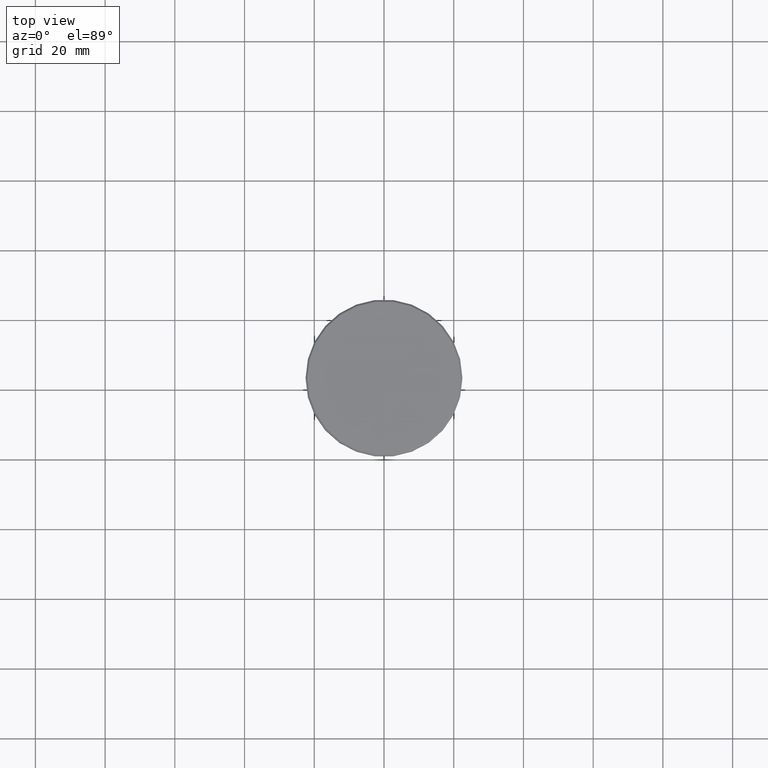
[diagram: clean part render]
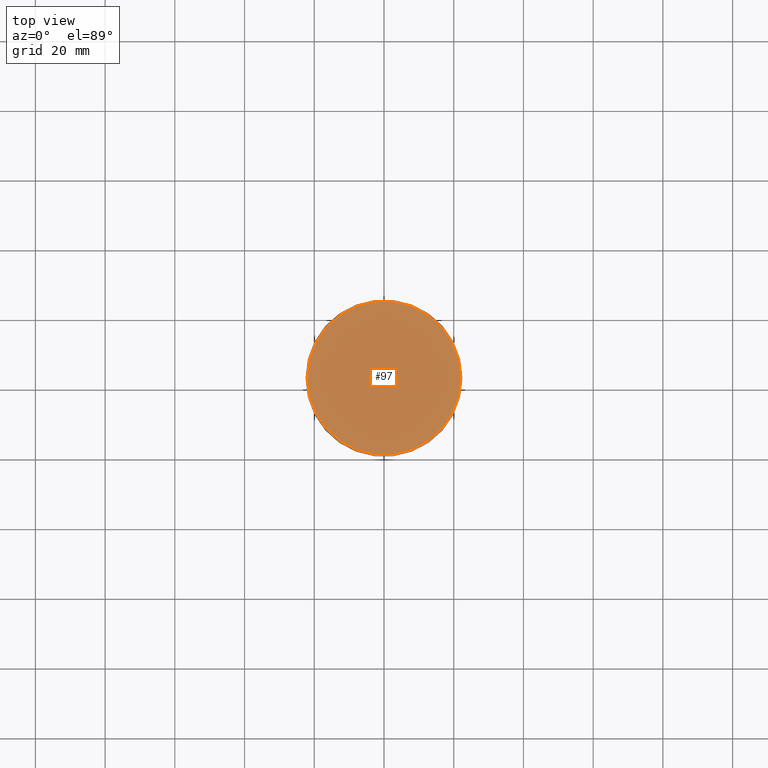
[diagram: same view with one face highlighted and labeled with its STEP entity id]
A machine part, top view. The second image highlights one B-rep face of the part: STEP entity #97.
In plain terms, the highlighted planar face has unit normal (0, -0, 1).
Its self-contained STEP definition (entity closure, byte-faithful):
#97 = ADVANCED_FACE ( 'NONE', ( #116 ), #855, .T. ) ;
#116 = FACE_OUTER_BOUND ( 'NONE', #1009, .T. ) ;
#266 = VERTEX_POINT ( 'NONE', #1062 ) ;
#329 = CARTESIAN_POINT ( 'NONE',  ( 0.000000000000000000, 0.000000000000000000, 0.000000000000000000 ) ) ;
#351 = CARTESIAN_POINT ( 'NONE',  ( 21.99999999999993605, 2.724839128102857046E-15, 0.000000000000000000 ) ) ;
#370 = CIRCLE ( 'NONE', #920, 21.99999999999993605 ) ;
#376 = ORIENTED_EDGE ( 'NONE', *, *, #705, .T. ) ;
#500 = DIRECTION ( 'NONE',  ( -0.000000000000000000, -0.000000000000000000, 1.000000000000000000 ) ) ;
#511 = DIRECTION ( 'NONE',  ( 1.000000000000000000, 0.000000000000000000, 0.000000000000000000 ) ) ;
#544 = VERTEX_POINT ( 'NONE', #351 ) ;
#604 = AXIS2_PLACEMENT_3D ( 'NONE', #1114, #944, #654 ) ;
#654 = DIRECTION ( 'NONE',  ( 1.000000000000000000, 0.000000000000000000, 0.000000000000000000 ) ) ;
#693 = DIRECTION ( 'NONE',  ( -0.000000000000000000, -0.000000000000000000, 1.000000000000000000 ) ) ;
#705 = EDGE_CURVE ( 'NONE', #544, #266, #370, .T. ) ;
#846 = CIRCLE ( 'NONE', #879, 21.99999999999993605 ) ;
#855 = PLANE ( 'NONE',  #604 ) ;
#868 = DIRECTION ( 'NONE',  ( 1.000000000000000000, 0.000000000000000000, 0.000000000000000000 ) ) ;
#879 = AXIS2_PLACEMENT_3D ( 'NONE', #329, #693, #511 ) ;
#914 = ORIENTED_EDGE ( 'NONE', *, *, #1056, .T. ) ;
#920 = AXIS2_PLACEMENT_3D ( 'NONE', #1061, #500, #868 ) ;
#944 = DIRECTION ( 'NONE',  ( 0.000000000000000000, -0.000000000000000000, 1.000000000000000000 ) ) ;
#1009 = EDGE_LOOP ( 'NONE', ( #914, #376 ) ) ;
#1056 = EDGE_CURVE ( 'NONE', #266, #544, #846, .T. ) ;
#1061 = CARTESIAN_POINT ( 'NONE',  ( 0.000000000000000000, 0.000000000000000000, 0.000000000000000000 ) ) ;
#1062 = CARTESIAN_POINT ( 'NONE',  ( -21.99999999999993605, 0.000000000000000000, 0.000000000000000000 ) ) ;
#1114 = CARTESIAN_POINT ( 'NONE',  ( 0.000000000000000000, 0.000000000000000000, 0.000000000000000000 ) ) ;